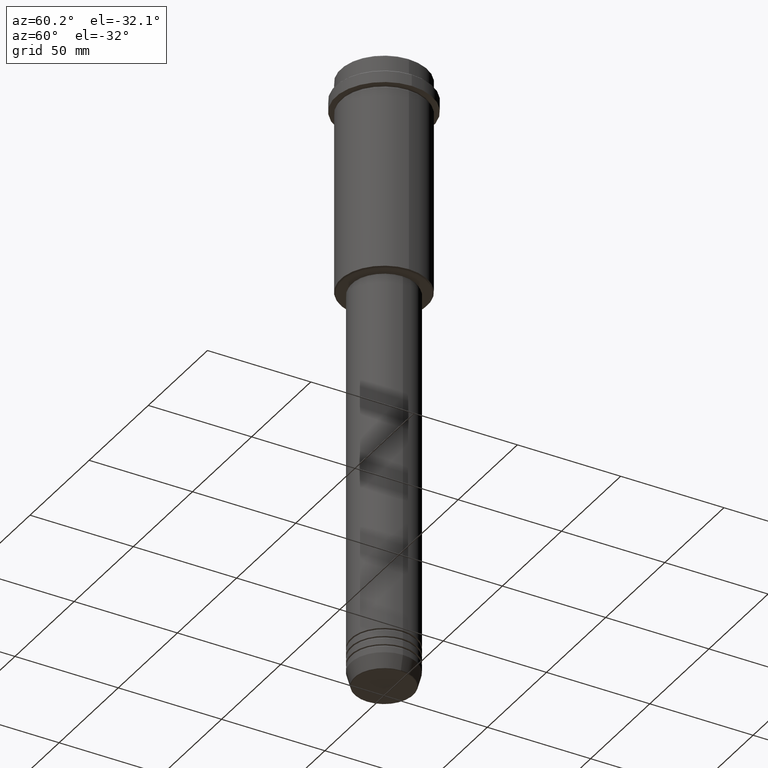
[diagram: clean part render]
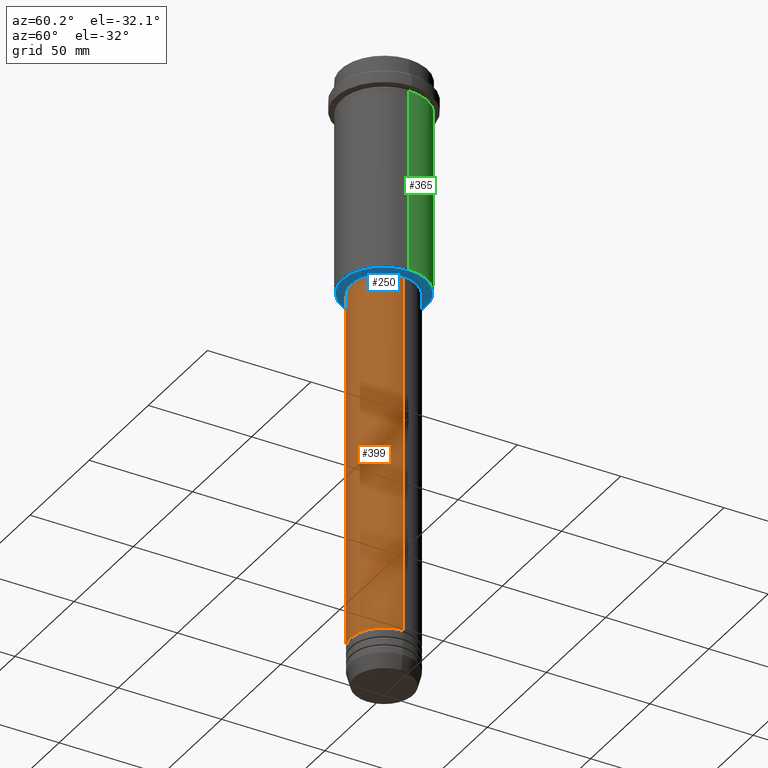
[diagram: same view with three faces highlighted in distinct colors, each labeled with its STEP entity id]
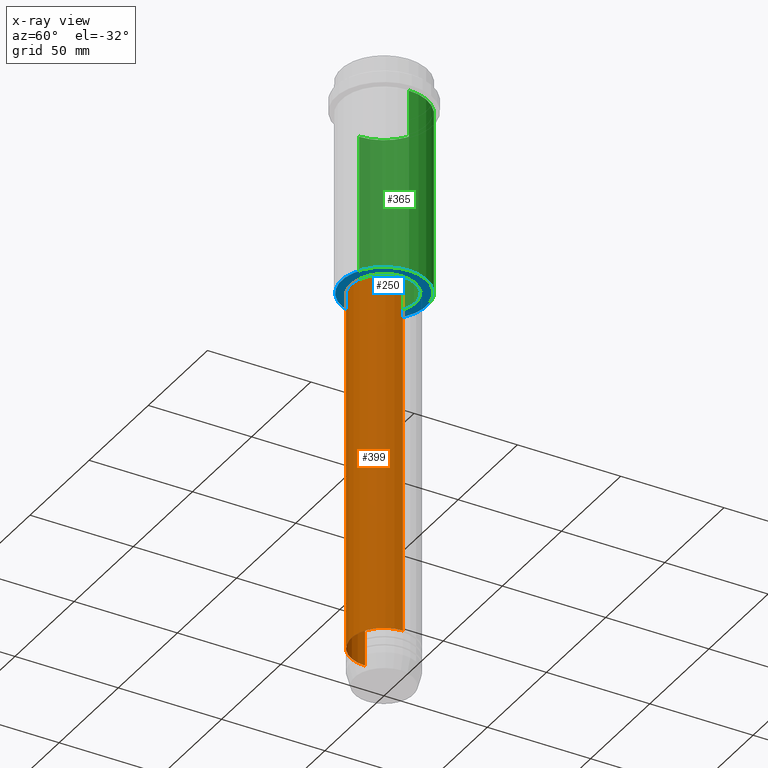
[diagram: x-ray of the same camera — body ghosted, the three highlighted faces saturated]
A machine part, auxiliary view with three faces highlighted in distinct colors.
The next image is the same camera in x-ray (body ghosted, the three faces saturated) — at least one of them is partly hidden behind the body in this view.
Their STEP definitions:

[orange] entity #399 — the highlighted cylindrical surface (partial cylindrical patch) has radius 16 mm, axis along (-0, -0, 1).
#33 = AXIS2_PLACEMENT_3D ( 'NONE', #346, #147, #997 ) ;
#38 = AXIS2_PLACEMENT_3D ( 'NONE', #565, #868, #790 ) ;
#87 = VERTEX_POINT ( 'NONE', #1331 ) ;
#123 = VECTOR ( 'NONE', #174, 1000.000000000000000 ) ;
#147 = DIRECTION ( 'NONE',  ( -0.000000000000000000, -0.000000000000000000, 1.000000000000000000 ) ) ;
#164 = CARTESIAN_POINT ( 'NONE',  ( -16.00000000000000000, 1.959434878635765131E-15, -280.9999999999999432 ) ) ;
#172 = CARTESIAN_POINT ( 'NONE',  ( 0.000000000000000000, 0.000000000000000000, -280.9999999999999432 ) ) ;
#174 = DIRECTION ( 'NONE',  ( -0.000000000000000000, -0.000000000000000000, 1.000000000000000000 ) ) ;
#195 = CARTESIAN_POINT ( 'NONE',  ( 16.00000000000000000, 0.000000000000000000, 0.000000000000000000 ) ) ;
#237 = EDGE_CURVE ( 'NONE', #87, #929, #386, .T. ) ;
#263 = ORIENTED_EDGE ( 'NONE', *, *, #477, .T. ) ;
#293 = EDGE_CURVE ( 'NONE', #533, #1221, #1243, .T. ) ;
#299 = AXIS2_PLACEMENT_3D ( 'NONE', #172, #607, #922 ) ;
#346 = CARTESIAN_POINT ( 'NONE',  ( 0.000000000000000000, 0.000000000000000000, 0.000000000000000000 ) ) ;
#386 = LINE ( 'NONE', #195, #1308 ) ;
#399 = ADVANCED_FACE ( 'NONE', ( #1103 ), #454, .T. ) ;
#454 = CYLINDRICAL_SURFACE ( 'NONE', #33, 16.00000000000000000 ) ;
#477 = EDGE_CURVE ( 'NONE', #533, #87, #648, .T. ) ;
#533 = VERTEX_POINT ( 'NONE', #164 ) ;
#565 = CARTESIAN_POINT ( 'NONE',  ( 0.000000000000000000, 0.000000000000000000, -105.9999999999999289 ) ) ;
#607 = DIRECTION ( 'NONE',  ( -0.000000000000000000, -0.000000000000000000, 1.000000000000000000 ) ) ;
#648 = CIRCLE ( 'NONE', #299, 16.00000000000000000 ) ;
#757 = CARTESIAN_POINT ( 'NONE',  ( 16.00000000000000355, 0.000000000000000000, -105.9999999999999289 ) ) ;
#790 = DIRECTION ( 'NONE',  ( 1.000000000000000000, 0.000000000000000000, 0.000000000000000000 ) ) ;
#868 = DIRECTION ( 'NONE',  ( -0.000000000000000000, -0.000000000000000000, 1.000000000000000000 ) ) ;
#922 = DIRECTION ( 'NONE',  ( 1.000000000000000000, 0.000000000000000000, 0.000000000000000000 ) ) ;
#929 = VERTEX_POINT ( 'NONE', #757 ) ;
#997 = DIRECTION ( 'NONE',  ( 1.000000000000000000, 0.000000000000000000, 0.000000000000000000 ) ) ;
#1014 = ORIENTED_EDGE ( 'NONE', *, *, #293, .F. ) ;
#1060 = CARTESIAN_POINT ( 'NONE',  ( -16.00000000000000355, 1.959434878635765526E-15, -105.9999999999999289 ) ) ;
#1066 = DIRECTION ( 'NONE',  ( -0.000000000000000000, -0.000000000000000000, 1.000000000000000000 ) ) ;
#1103 = FACE_OUTER_BOUND ( 'NONE', #1294, .T. ) ;
#1118 = ORIENTED_EDGE ( 'NONE', *, *, #1315, .F. ) ;
#1133 = CARTESIAN_POINT ( 'NONE',  ( -16.00000000000000000, 1.959434878635765131E-15, 0.000000000000000000 ) ) ;
#1221 = VERTEX_POINT ( 'NONE', #1060 ) ;
#1243 = LINE ( 'NONE', #1133, #123 ) ;
#1265 = ORIENTED_EDGE ( 'NONE', *, *, #237, .T. ) ;
#1294 = EDGE_LOOP ( 'NONE', ( #1014, #263, #1265, #1118 ) ) ;
#1308 = VECTOR ( 'NONE', #1066, 1000.000000000000000 ) ;
#1315 = EDGE_CURVE ( 'NONE', #1221, #929, #1357, .T. ) ;
#1331 = CARTESIAN_POINT ( 'NONE',  ( 16.00000000000000000, 0.000000000000000000, -280.9999999999999432 ) ) ;
#1357 = CIRCLE ( 'NONE', #38, 16.00000000000000355 ) ;

[blue] entity #250 — the highlighted planar face has unit normal (0, 0, -1).
#7 = EDGE_CURVE ( 'NONE', #587, #1317, #146, .T. ) ;
#31 = EDGE_LOOP ( 'NONE', ( #1373, #641 ) ) ;
#52 = AXIS2_PLACEMENT_3D ( 'NONE', #469, #683, #112 ) ;
#112 = DIRECTION ( 'NONE',  ( -1.000000000000000000, 0.000000000000000000, 0.000000000000000000 ) ) ;
#113 = CARTESIAN_POINT ( 'NONE',  ( 0.000000000000000000, 0.000000000000000000, -104.9999999999999858 ) ) ;
#115 = CARTESIAN_POINT ( 'NONE',  ( 15.50000000000000000, 0.000000000000000000, -104.9999999999999858 ) ) ;
#146 = CIRCLE ( 'NONE', #52, 20.50000000000004619 ) ;
#200 = VERTEX_POINT ( 'NONE', #1345 ) ;
#229 = DIRECTION ( 'NONE',  ( -1.000000000000000000, 0.000000000000000000, -0.000000000000000000 ) ) ;
#231 = AXIS2_PLACEMENT_3D ( 'NONE', #994, #1332, #872 ) ;
#250 = ADVANCED_FACE ( 'NONE', ( #335, #1102 ), #768, .T. ) ;
#335 = FACE_OUTER_BOUND ( 'NONE', #31, .T. ) ;
#347 = DIRECTION ( 'NONE',  ( 1.000000000000000000, 0.000000000000000000, 0.000000000000000000 ) ) ;
#452 = DIRECTION ( 'NONE',  ( 0.000000000000000000, 0.000000000000000000, -1.000000000000000000 ) ) ;
#469 = CARTESIAN_POINT ( 'NONE',  ( 0.000000000000000000, 0.000000000000000000, -105.0000000000000000 ) ) ;
#557 = CIRCLE ( 'NONE', #231, 20.50000000000004619 ) ;
#587 = VERTEX_POINT ( 'NONE', #1019 ) ;
#641 = ORIENTED_EDGE ( 'NONE', *, *, #925, .T. ) ;
#645 = AXIS2_PLACEMENT_3D ( 'NONE', #1209, #452, #229 ) ;
#682 = EDGE_CURVE ( 'NONE', #758, #200, #953, .T. ) ;
#683 = DIRECTION ( 'NONE',  ( 0.000000000000000000, 0.000000000000000000, -1.000000000000000000 ) ) ;
#758 = VERTEX_POINT ( 'NONE', #115 ) ;
#762 = CARTESIAN_POINT ( 'NONE',  ( -20.50000000000004619, 2.541142108230760635E-15, -105.0000000000000000 ) ) ;
#768 = PLANE ( 'NONE',  #645 ) ;
#872 = DIRECTION ( 'NONE',  ( -1.000000000000000000, 0.000000000000000000, 0.000000000000000000 ) ) ;
#890 = AXIS2_PLACEMENT_3D ( 'NONE', #113, #978, #347 ) ;
#925 = EDGE_CURVE ( 'NONE', #1317, #587, #557, .T. ) ;
#953 = CIRCLE ( 'NONE', #1075, 15.50000000000000000 ) ;
#978 = DIRECTION ( 'NONE',  ( -0.000000000000000000, -0.000000000000000000, 1.000000000000000000 ) ) ;
#994 = CARTESIAN_POINT ( 'NONE',  ( 0.000000000000000000, 0.000000000000000000, -105.0000000000000000 ) ) ;
#1006 = ORIENTED_EDGE ( 'NONE', *, *, #1376, .T. ) ;
#1019 = CARTESIAN_POINT ( 'NONE',  ( 20.50000000000004619, 0.000000000000000000, -105.0000000000000000 ) ) ;
#1075 = AXIS2_PLACEMENT_3D ( 'NONE', #1174, #1179, #1283 ) ;
#1102 = FACE_BOUND ( 'NONE', #1365, .T. ) ;
#1170 = CIRCLE ( 'NONE', #890, 15.50000000000000000 ) ;
#1174 = CARTESIAN_POINT ( 'NONE',  ( 0.000000000000000000, 0.000000000000000000, -104.9999999999999858 ) ) ;
#1179 = DIRECTION ( 'NONE',  ( -0.000000000000000000, -0.000000000000000000, 1.000000000000000000 ) ) ;
#1209 = CARTESIAN_POINT ( 'NONE',  ( 0.000000000000000000, 21.00000000000000000, -105.0000000000000000 ) ) ;
#1283 = DIRECTION ( 'NONE',  ( 1.000000000000000000, 0.000000000000000000, 0.000000000000000000 ) ) ;
#1317 = VERTEX_POINT ( 'NONE', #762 ) ;
#1332 = DIRECTION ( 'NONE',  ( 0.000000000000000000, 0.000000000000000000, -1.000000000000000000 ) ) ;
#1345 = CARTESIAN_POINT ( 'NONE',  ( -15.50000000000000000, 1.898202538678397557E-15, -104.9999999999999858 ) ) ;
#1365 = EDGE_LOOP ( 'NONE', ( #1413, #1006 ) ) ;
#1373 = ORIENTED_EDGE ( 'NONE', *, *, #7, .T. ) ;
#1376 = EDGE_CURVE ( 'NONE', #200, #758, #1170, .T. ) ;
#1413 = ORIENTED_EDGE ( 'NONE', *, *, #682, .T. ) ;

[green] entity #365 — the highlighted cylindrical surface (partial cylindrical patch) has radius 21 mm, axis along (-0, -0, 1).
#17 = CARTESIAN_POINT ( 'NONE',  ( 20.99999999999999645, 0.000000000000000000, -16.00000000000000355 ) ) ;
#43 = LINE ( 'NONE', #333, #731 ) ;
#67 = VERTEX_POINT ( 'NONE', #17 ) ;
#88 = CARTESIAN_POINT ( 'NONE',  ( 0.000000000000000000, 0.000000000000000000, 0.000000000000000000 ) ) ;
#144 = EDGE_CURVE ( 'NONE', #495, #1346, #1349, .T. ) ;
#162 = CARTESIAN_POINT ( 'NONE',  ( -20.99999999999999645, 2.571758278209441267E-15, -16.00000000000000355 ) ) ;
#171 = VECTOR ( 'NONE', #1252, 1000.000000000000000 ) ;
#238 = CARTESIAN_POINT ( 'NONE',  ( 20.99999999999999645, 0.000000000000000000, -104.5000000000000284 ) ) ;
#284 = CARTESIAN_POINT ( 'NONE',  ( 20.99999999999999645, 0.000000000000000000, 0.000000000000000000 ) ) ;
#327 = EDGE_LOOP ( 'NONE', ( #338, #920, #678, #853 ) ) ;
#333 = CARTESIAN_POINT ( 'NONE',  ( -20.99999999999999645, 2.571758278209441267E-15, 0.000000000000000000 ) ) ;
#338 = ORIENTED_EDGE ( 'NONE', *, *, #144, .T. ) ;
#365 = ADVANCED_FACE ( 'NONE', ( #1139 ), #960, .T. ) ;
#390 = EDGE_CURVE ( 'NONE', #67, #974, #1092, .T. ) ;
#476 = DIRECTION ( 'NONE',  ( -0.000000000000000000, -0.000000000000000000, 1.000000000000000000 ) ) ;
#489 = AXIS2_PLACEMENT_3D ( 'NONE', #88, #636, #1065 ) ;
#495 = VERTEX_POINT ( 'NONE', #238 ) ;
#609 = CARTESIAN_POINT ( 'NONE',  ( 0.000000000000000000, 0.000000000000000000, -104.5000000000000284 ) ) ;
#636 = DIRECTION ( 'NONE',  ( -0.000000000000000000, -0.000000000000000000, 1.000000000000000000 ) ) ;
#643 = DIRECTION ( 'NONE',  ( 1.000000000000000000, 0.000000000000000000, 0.000000000000000000 ) ) ;
#678 = ORIENTED_EDGE ( 'NONE', *, *, #390, .F. ) ;
#724 = AXIS2_PLACEMENT_3D ( 'NONE', #609, #1158, #944 ) ;
#731 = VECTOR ( 'NONE', #476, 1000.000000000000000 ) ;
#791 = DIRECTION ( 'NONE',  ( -0.000000000000000000, -0.000000000000000000, 1.000000000000000000 ) ) ;
#853 = ORIENTED_EDGE ( 'NONE', *, *, #991, .F. ) ;
#858 = CARTESIAN_POINT ( 'NONE',  ( -20.99999999999999645, 2.571758278209441267E-15, -104.5000000000000284 ) ) ;
#920 = ORIENTED_EDGE ( 'NONE', *, *, #945, .T. ) ;
#944 = DIRECTION ( 'NONE',  ( -1.000000000000000000, 0.000000000000000000, 0.000000000000000000 ) ) ;
#945 = EDGE_CURVE ( 'NONE', #1346, #974, #43, .T. ) ;
#960 = CYLINDRICAL_SURFACE ( 'NONE', #489, 20.99999999999999645 ) ;
#974 = VERTEX_POINT ( 'NONE', #162 ) ;
#980 = CARTESIAN_POINT ( 'NONE',  ( 0.000000000000000000, 0.000000000000000000, -16.00000000000000355 ) ) ;
#991 = EDGE_CURVE ( 'NONE', #495, #67, #1362, .T. ) ;
#1065 = DIRECTION ( 'NONE',  ( 1.000000000000000000, 0.000000000000000000, 0.000000000000000000 ) ) ;
#1092 = CIRCLE ( 'NONE', #1285, 20.99999999999999645 ) ;
#1139 = FACE_OUTER_BOUND ( 'NONE', #327, .T. ) ;
#1158 = DIRECTION ( 'NONE',  ( -0.000000000000000000, -0.000000000000000000, 1.000000000000000000 ) ) ;
#1252 = DIRECTION ( 'NONE',  ( -0.000000000000000000, -0.000000000000000000, 1.000000000000000000 ) ) ;
#1285 = AXIS2_PLACEMENT_3D ( 'NONE', #980, #791, #643 ) ;
#1346 = VERTEX_POINT ( 'NONE', #858 ) ;
#1349 = CIRCLE ( 'NONE', #724, 20.99999999999999645 ) ;
#1362 = LINE ( 'NONE', #284, #171 ) ;